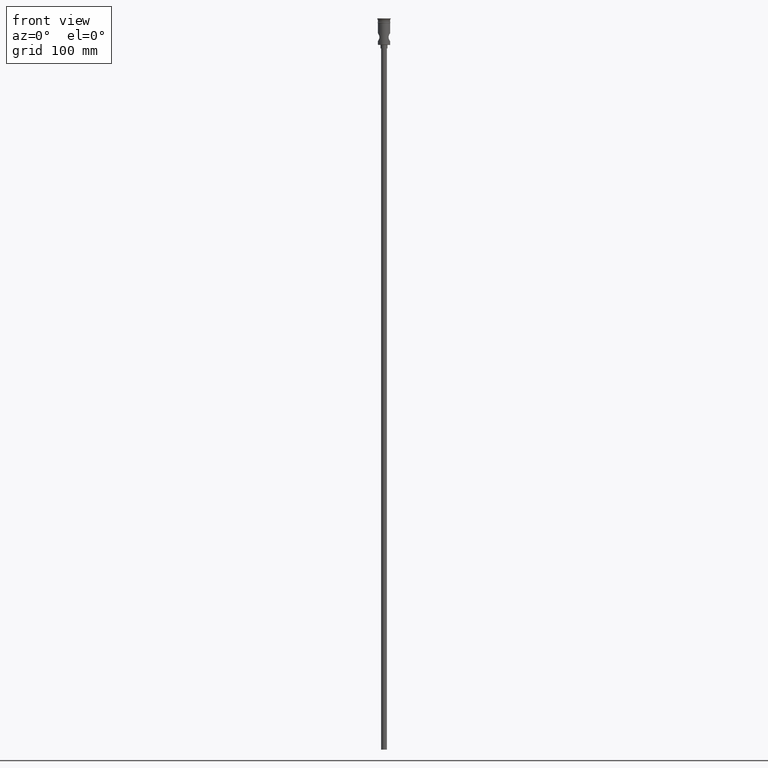
[diagram: clean part render]
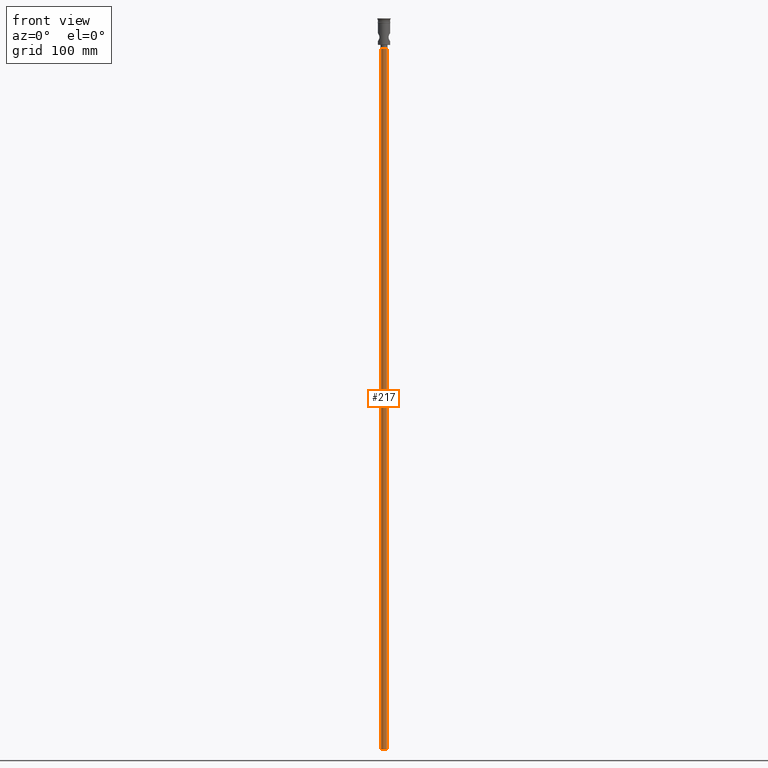
[diagram: same view with one face highlighted and labeled with its STEP entity id]
A machine part, front view. The second image highlights one B-rep face of the part: STEP entity #217.
In plain terms, the highlighted cylindrical surface (edge-blend (fillet) strip) has radius 2.5 mm, axis along (-0, -0, 1).
Its self-contained STEP definition (entity closure, byte-faithful):
#12 = CIRCLE ( 'NONE', #1316, 2.500000000000000000 ) ;
#70 = EDGE_CURVE ( 'NONE', #1039, #485, #1016, .T. ) ;
#130 = DIRECTION ( 'NONE',  ( -1.000000000000000000, 0.000000000000000000, 0.000000000000000000 ) ) ;
#217 = ADVANCED_FACE ( 'NONE', ( #270 ), #1394, .T. ) ;
#270 = FACE_OUTER_BOUND ( 'NONE', #1409, .T. ) ;
#291 = AXIS2_PLACEMENT_3D ( 'NONE', #967, #647, #977 ) ;
#306 = CARTESIAN_POINT ( 'NONE',  ( 2.500000000000000000, 0.000000000000000000, -622.4999999999998863 ) ) ;
#383 = DIRECTION ( 'NONE',  ( 1.000000000000000000, 0.000000000000000000, 0.000000000000000000 ) ) ;
#485 = VERTEX_POINT ( 'NONE', #903 ) ;
#503 = CARTESIAN_POINT ( 'NONE',  ( 0.000000000000000000, 0.000000000000000000, -622.4999999999998863 ) ) ;
#507 = CARTESIAN_POINT ( 'NONE',  ( 2.500000000000000000, 0.000000000000000000, -622.4999999999998863 ) ) ;
#548 = AXIS2_PLACEMENT_3D ( 'NONE', #503, #1061, #383 ) ;
#604 = EDGE_CURVE ( 'NONE', #1313, #956, #1396, .T. ) ;
#634 = ORIENTED_EDGE ( 'NONE', *, *, #604, .T. ) ;
#647 = DIRECTION ( 'NONE',  ( 0.000000000000000000, 0.000000000000000000, -1.000000000000000000 ) ) ;
#719 = ORIENTED_EDGE ( 'NONE', *, *, #1416, .F. ) ;
#861 = VECTOR ( 'NONE', #1415, 1000.000000000000000 ) ;
#890 = EDGE_CURVE ( 'NONE', #956, #485, #1106, .T. ) ;
#903 = CARTESIAN_POINT ( 'NONE',  ( -2.500000000000000000, 3.061616997868383141E-16, -25.50000000000000000 ) ) ;
#956 = VERTEX_POINT ( 'NONE', #1451 ) ;
#967 = CARTESIAN_POINT ( 'NONE',  ( 0.000000000000000000, 0.000000000000000000, -25.50000000000000000 ) ) ;
#977 = DIRECTION ( 'NONE',  ( -1.000000000000000000, 0.000000000000000000, 0.000000000000000000 ) ) ;
#1016 = LINE ( 'NONE', #1037, #1289 ) ;
#1024 = DIRECTION ( 'NONE',  ( -0.000000000000000000, -0.000000000000000000, 1.000000000000000000 ) ) ;
#1037 = CARTESIAN_POINT ( 'NONE',  ( -2.500000000000000000, 3.061616997868383141E-16, -622.4999999999998863 ) ) ;
#1039 = VERTEX_POINT ( 'NONE', #1040 ) ;
#1040 = CARTESIAN_POINT ( 'NONE',  ( -2.500000000000000000, 3.061616997868383141E-16, -622.4999999999998863 ) ) ;
#1061 = DIRECTION ( 'NONE',  ( -0.000000000000000000, -0.000000000000000000, 1.000000000000000000 ) ) ;
#1106 = CIRCLE ( 'NONE', #291, 2.500000000000000000 ) ;
#1260 = CARTESIAN_POINT ( 'NONE',  ( 0.000000000000000000, 0.000000000000000000, -622.4999999999998863 ) ) ;
#1261 = ORIENTED_EDGE ( 'NONE', *, *, #70, .F. ) ;
#1284 = ORIENTED_EDGE ( 'NONE', *, *, #890, .T. ) ;
#1289 = VECTOR ( 'NONE', #1024, 1000.000000000000000 ) ;
#1313 = VERTEX_POINT ( 'NONE', #306 ) ;
#1316 = AXIS2_PLACEMENT_3D ( 'NONE', #1260, #1456, #130 ) ;
#1394 = CYLINDRICAL_SURFACE ( 'NONE', #548, 2.500000000000000000 ) ;
#1396 = LINE ( 'NONE', #507, #861 ) ;
#1409 = EDGE_LOOP ( 'NONE', ( #1261, #719, #634, #1284 ) ) ;
#1415 = DIRECTION ( 'NONE',  ( -0.000000000000000000, -0.000000000000000000, 1.000000000000000000 ) ) ;
#1416 = EDGE_CURVE ( 'NONE', #1313, #1039, #12, .T. ) ;
#1451 = CARTESIAN_POINT ( 'NONE',  ( 2.500000000000000000, 0.000000000000000000, -25.50000000000000000 ) ) ;
#1456 = DIRECTION ( 'NONE',  ( 0.000000000000000000, 0.000000000000000000, -1.000000000000000000 ) ) ;